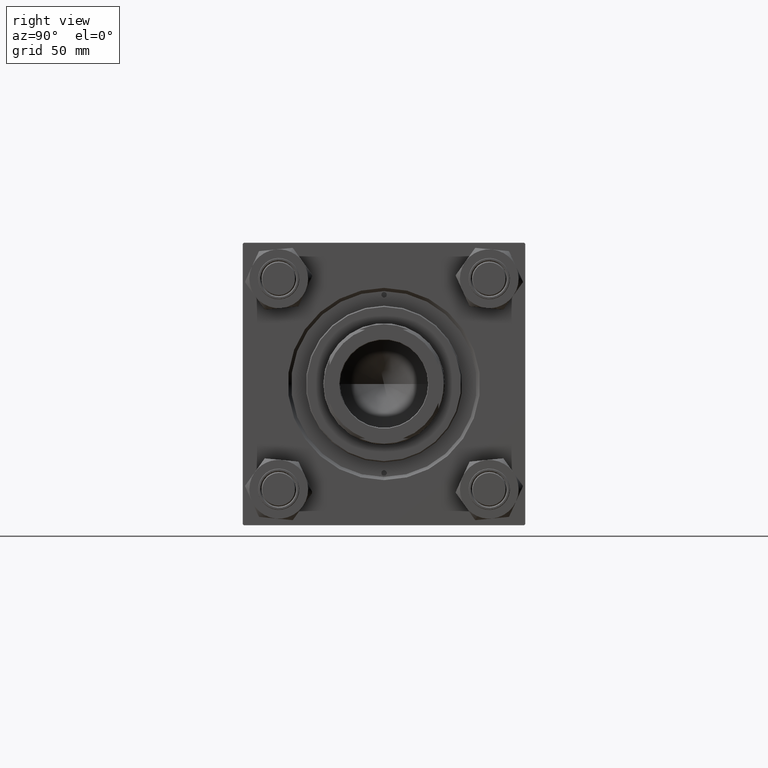
[diagram: clean part render]
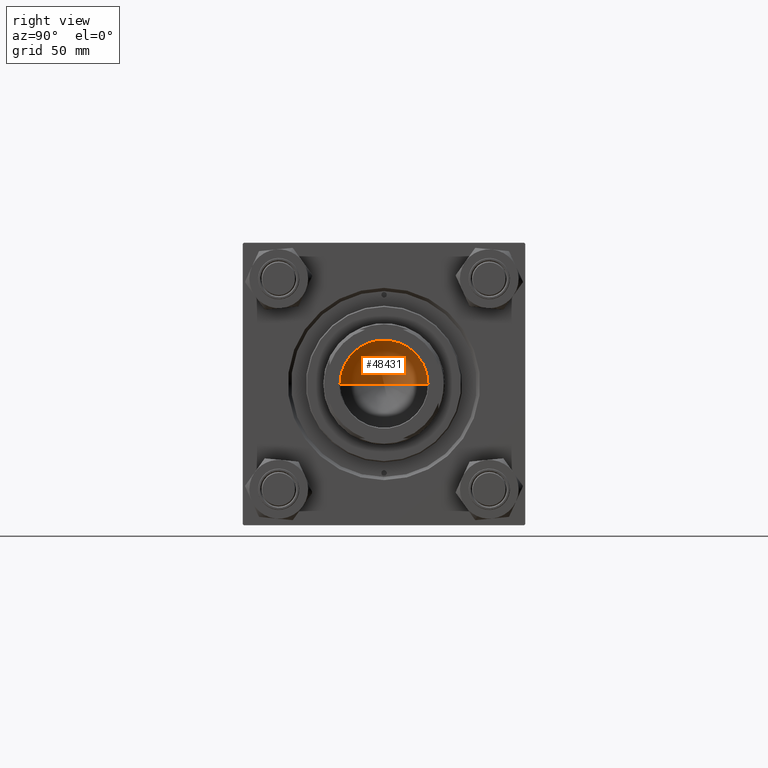
[diagram: same view with one face highlighted and labeled with its STEP entity id]
A machine part, right view. The second image highlights one B-rep face of the part: STEP entity #48431.
In plain terms, the highlighted conical surface has half-angle 59 deg.
Its self-contained STEP definition (entity closure, byte-faithful):
#887 = CARTESIAN_POINT ( 'NONE',  ( -1.584115414415908206E-14, 0.000000000000000000, 104.8325724646918928 ) ) ;
#4836 = CIRCLE ( 'NONE', #39858, 20.24999999999998934 ) ;
#7172 = DIRECTION ( 'NONE',  ( -0.8571673007021115565, 1.049727191138617710E-16, 0.5150380749100554878 ) ) ;
#7638 = CARTESIAN_POINT ( 'NONE',  ( -20.24999999999998934, 2.479909768273389117E-15, 117.0000000000000142 ) ) ;
#7997 = FACE_OUTER_BOUND ( 'NONE', #49729, .T. ) ;
#10928 = VECTOR ( 'NONE', #7172, 1000.000000000000000 ) ;
#12565 = DIRECTION ( 'NONE',  ( -0.000000000000000000, -0.000000000000000000, 1.000000000000000000 ) ) ;
#14417 = VERTEX_POINT ( 'NONE', #887 ) ;
#18959 = CARTESIAN_POINT ( 'NONE',  ( 20.24999999999998934, 0.000000000000000000, 117.0000000000000142 ) ) ;
#24045 = DIRECTION ( 'NONE',  ( 1.000000000000000000, 0.000000000000000000, 0.000000000000000000 ) ) ;
#27138 = EDGE_CURVE ( 'NONE', #14417, #45099, #38270, .T. ) ;
#28508 = VECTOR ( 'NONE', #41861, 1000.000000000000000 ) ;
#29607 = EDGE_CURVE ( 'NONE', #36553, #45099, #4836, .T. ) ;
#30221 = ORIENTED_EDGE ( 'NONE', *, *, #45456, .T. ) ;
#30631 = CARTESIAN_POINT ( 'NONE',  ( 20.24999999999998934, 0.000000000000000000, 117.0000000000000142 ) ) ;
#34807 = ORIENTED_EDGE ( 'NONE', *, *, #29607, .T. ) ;
#36553 = VERTEX_POINT ( 'NONE', #7638 ) ;
#38270 = LINE ( 'NONE', #30631, #28508 ) ;
#38284 = CARTESIAN_POINT ( 'NONE',  ( -20.24999999999998934, 2.479909768273389117E-15, 117.0000000000000142 ) ) ;
#39362 = CARTESIAN_POINT ( 'NONE',  ( 0.000000000000000000, 0.000000000000000000, 117.0000000000000142 ) ) ;
#39519 = CONICAL_SURFACE ( 'NONE', #44393, 20.24999999999998934, 1.029744258676652979 ) ;
#39858 = AXIS2_PLACEMENT_3D ( 'NONE', #46864, #46606, #42784 ) ;
#41861 = DIRECTION ( 'NONE',  ( 0.8571673007021115565, 0.000000000000000000, 0.5150380749100554878 ) ) ;
#42784 = DIRECTION ( 'NONE',  ( 1.000000000000000000, 0.000000000000000000, 0.000000000000000000 ) ) ;
#44393 = AXIS2_PLACEMENT_3D ( 'NONE', #39362, #12565, #24045 ) ;
#45099 = VERTEX_POINT ( 'NONE', #18959 ) ;
#45279 = ORIENTED_EDGE ( 'NONE', *, *, #27138, .F. ) ;
#45456 = EDGE_CURVE ( 'NONE', #14417, #36553, #46196, .T. ) ;
#46196 = LINE ( 'NONE', #38284, #10928 ) ;
#46606 = DIRECTION ( 'NONE',  ( -0.000000000000000000, -0.000000000000000000, 1.000000000000000000 ) ) ;
#46864 = CARTESIAN_POINT ( 'NONE',  ( 0.000000000000000000, 0.000000000000000000, 117.0000000000000142 ) ) ;
#48431 = ADVANCED_FACE ( 'NONE', ( #7997 ), #39519, .F. ) ;
#49729 = EDGE_LOOP ( 'NONE', ( #45279, #30221, #34807 ) ) ;